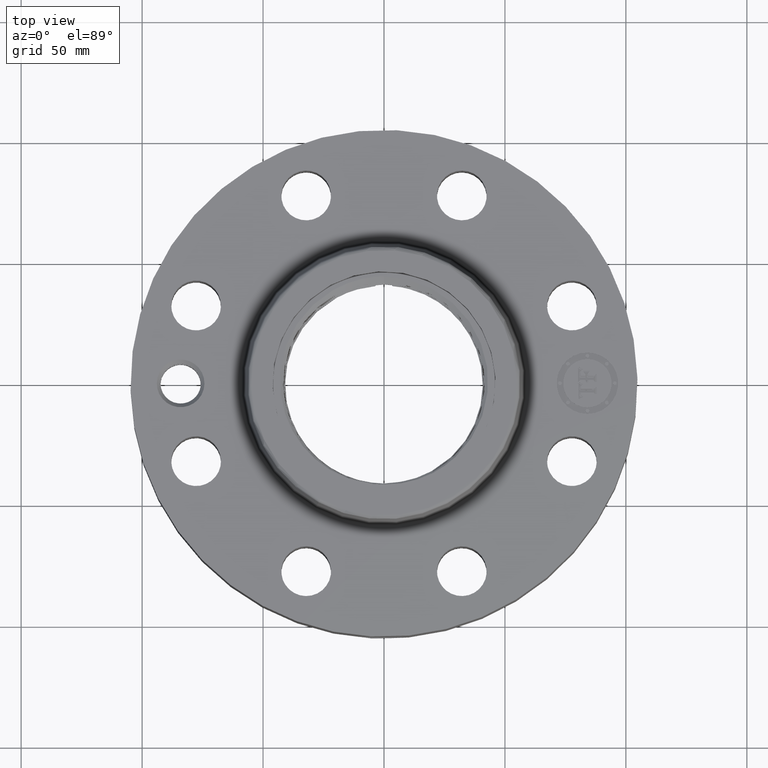
[diagram: clean part render]
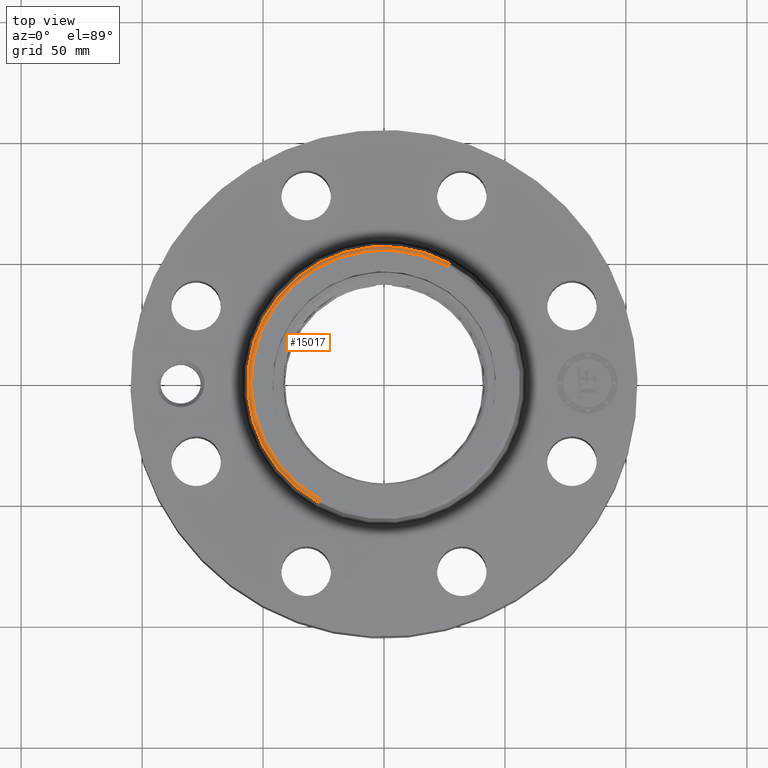
[diagram: same view with one face highlighted and labeled with its STEP entity id]
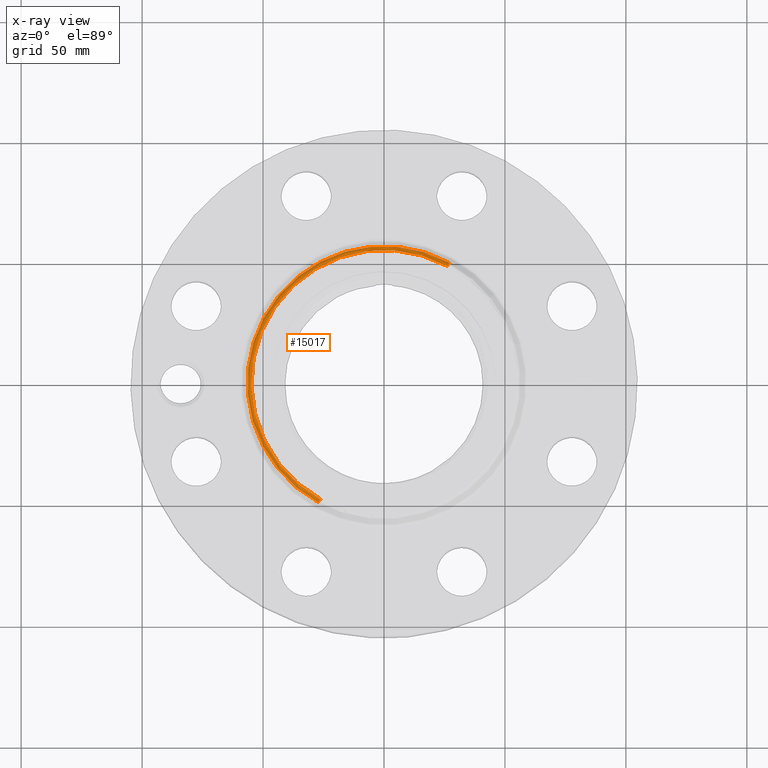
[diagram: x-ray of the same camera — body ghosted, the highlighted face saturated]
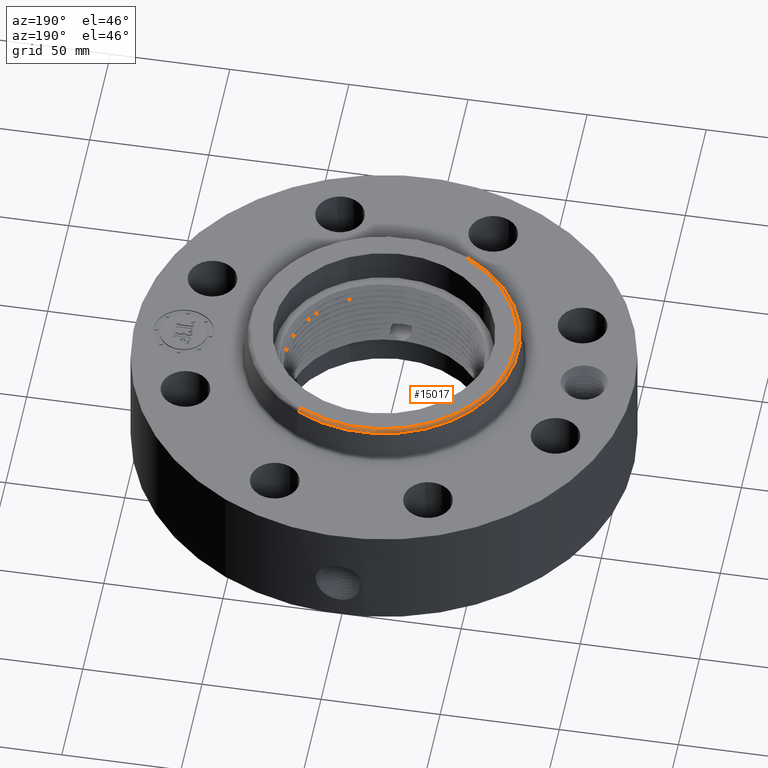
[diagram: same view with one face highlighted and labeled with its STEP entity id]
A machine part, top view. The second image highlights one B-rep face of the part: STEP entity #15017.
The next image is the same camera in x-ray: the body ghosted, the highlighted face saturated — about 0% of this face is hidden behind the body in this view.
A second angle (auxiliary view) of the same face is appended — the face is thin or edge-on in the first view.
In plain terms, the highlighted toroidal blend (fillet) surface has major radius 54.8871 mm and minor (blend) radius 1.524 mm.
Its self-contained STEP definition (entity closure, byte-faithful):
#13500=AXIS2_PLACEMENT_3D('Circle Axis2P3D',#13498,#13499,$) ;
#14978=AXIS2_PLACEMENT_3D('Torus Axis2P3D',#14975,#14976,#14977) ;
#14982=AXIS2_PLACEMENT_3D('Circle Axis2P3D',#14980,#14981,$) ;
#14996=AXIS2_PLACEMENT_3D('Circle Axis2P3D',#14994,#14995,$) ;
#15008=AXIS2_PLACEMENT_3D('Circle Axis2P3D',#15006,#15007,$) ;
#13476=CARTESIAN_POINT('Vertex',(1.06432439756,1.94823274165,2.32341889067)) ;
#13483=CARTESIAN_POINT('Vertex',(-1.06432439756,-1.94823274165,2.32341889067)) ;
#13498=CARTESIAN_POINT('Axis2P3D Location',(0.,0.,2.32341889067)) ;
#14975=CARTESIAN_POINT('Axis2P3D Location',(0.,0.,2.31300000001)) ;
#14980=CARTESIAN_POINT('Axis2P3D Location',(1.03599587831,1.896377735,2.31300000001)) ;
#14984=CARTESIAN_POINT('Vertex',(1.03599587831,1.896377735,2.37300000001)) ;
#14991=CARTESIAN_POINT('Vertex',(-1.03599587831,-1.896377735,2.37300000001)) ;
#14994=CARTESIAN_POINT('Axis2P3D Location',(-1.03599587831,-1.896377735,2.31300000001)) ;
#15006=CARTESIAN_POINT('Axis2P3D Location',(0.,0.,2.37300000001)) ;
#13499=DIRECTION('Axis2P3D Direction',(0.,0.,-0.0393700787402)) ;
#14976=DIRECTION('Axis2P3D Direction',(0.,0.,-0.0393700787402)) ;
#14977=DIRECTION('Axis2P3D XDirection',(-0.0188750212049,-0.0345504945626,0.)) ;
#14981=DIRECTION('Axis2P3D Direction',(-0.0345504945626,0.0188750212049,0.)) ;
#14995=DIRECTION('Axis2P3D Direction',(0.0345504945626,-0.0188750212049,0.)) ;
#15007=DIRECTION('Axis2P3D Direction',(0.,0.,-0.0393700787402)) ;
#15012=ORIENTED_EDGE('',*,*,#13502,.F.) ;
#15013=ORIENTED_EDGE('',*,*,#14998,.T.) ;
#15014=ORIENTED_EDGE('',*,*,#15010,.T.) ;
#15015=ORIENTED_EDGE('',*,*,#14986,.F.) ;
#15017=ADVANCED_FACE('PartBody',(#15016),#14979,.T.) ;
#13501=CIRCLE('generated circle',#13500,2.21999937812) ;
#14983=CIRCLE('generated circle',#14982,0.0600000000002) ;
#14997=CIRCLE('generated circle',#14996,0.0600000000002) ;
#15009=CIRCLE('generated circle',#15008,2.16091091294) ;
#14979=TOROIDAL_SURFACE('homeo Torus',#14978,2.16091091294,0.0600000000002) ;
#13502=EDGE_CURVE('',#13484,#13477,#13501,.T.) ;
#14986=EDGE_CURVE('',#13477,#14985,#14983,.F.) ;
#14998=EDGE_CURVE('',#13484,#14992,#14997,.F.) ;
#15010=EDGE_CURVE('',#14992,#14985,#15009,.T.) ;
#15011=EDGE_LOOP('',(#15012,#15013,#15014,#15015)) ;
#15016=FACE_OUTER_BOUND('',#15011,.T.) ;
#13477=VERTEX_POINT('',#13476) ;
#13484=VERTEX_POINT('',#13483) ;
#14985=VERTEX_POINT('',#14984) ;
#14992=VERTEX_POINT('',#14991) ;